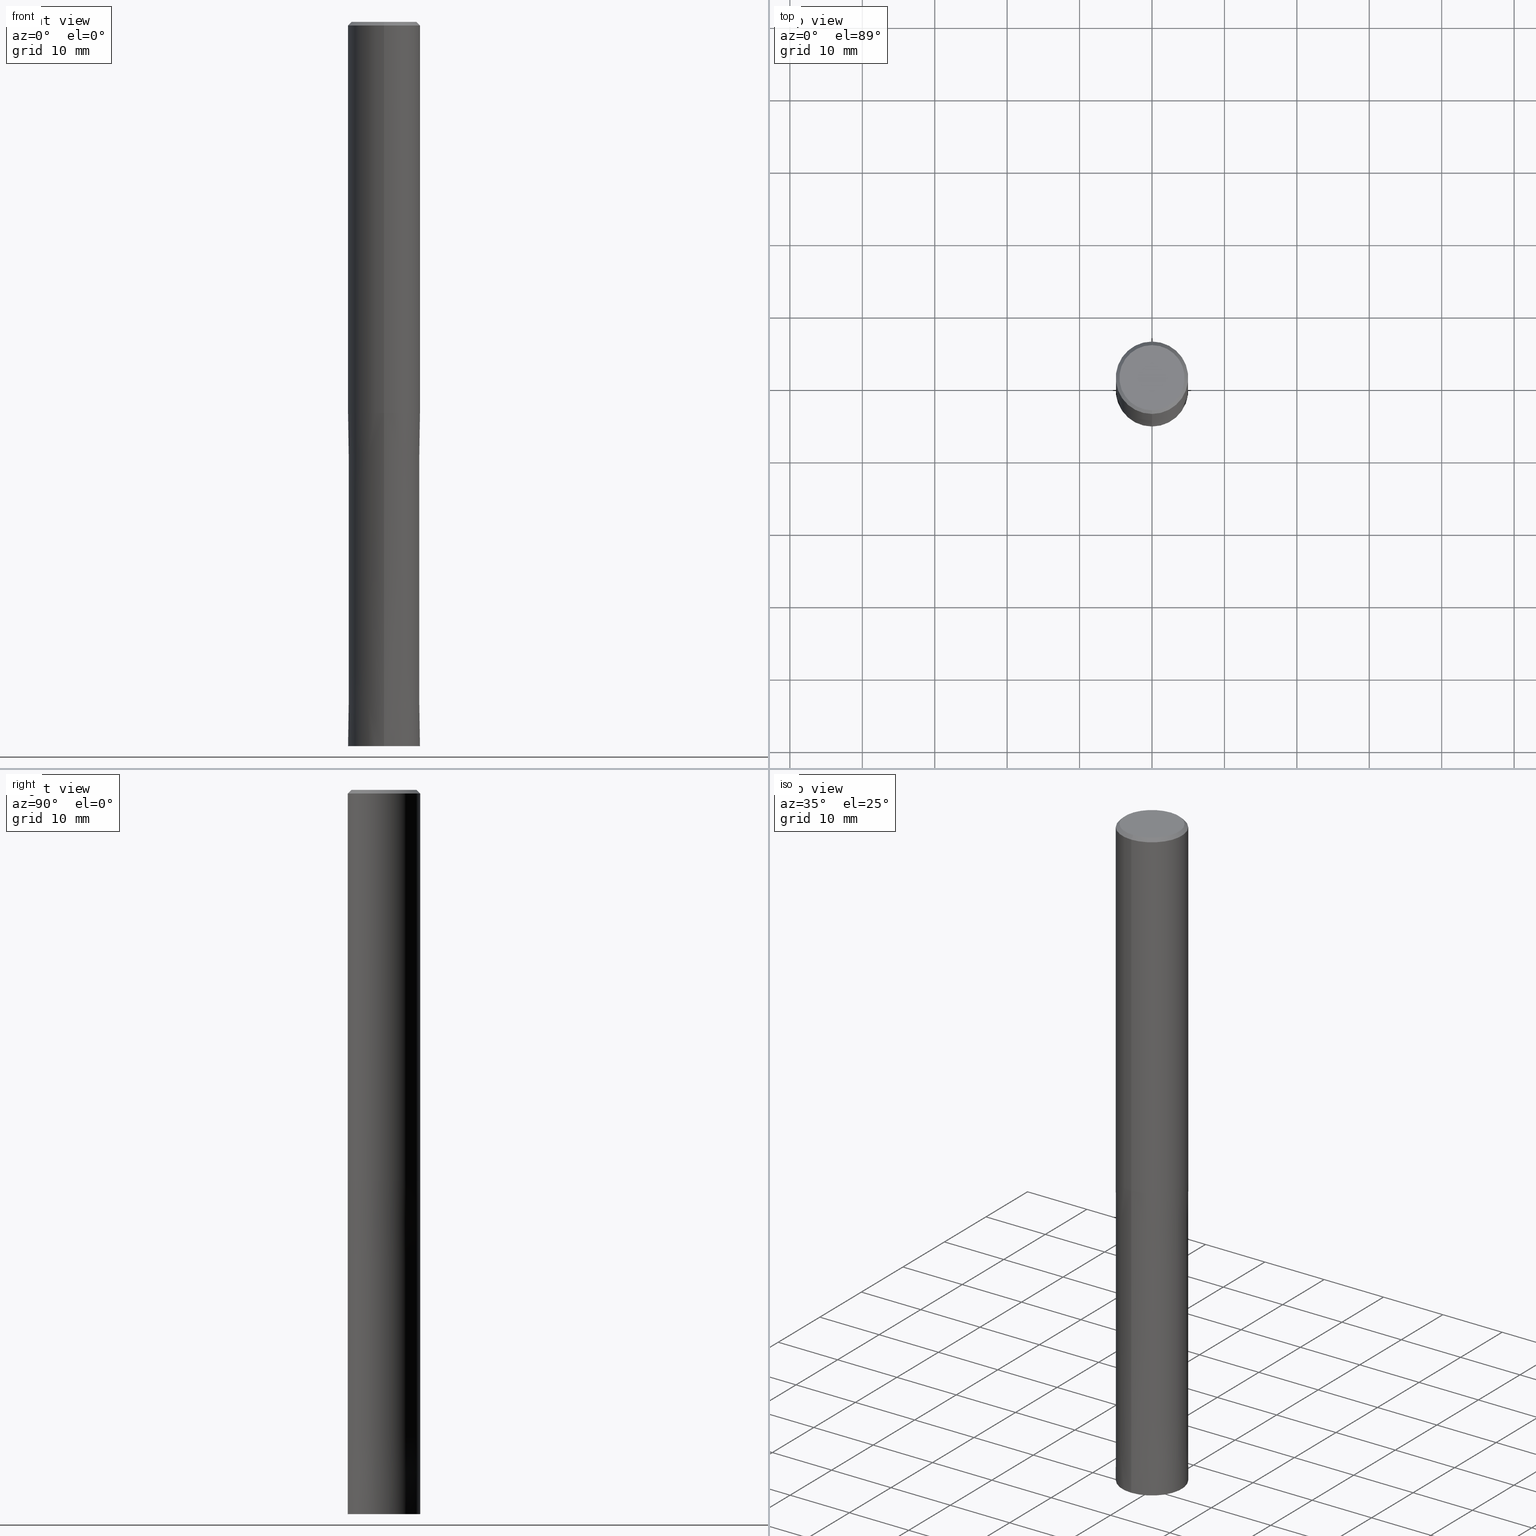
[diagram: canonical four-view strip — front | top / right | iso, engineering-drawing reading convention]
A machine part, canonical four-view strip (front | top / right | iso — engineering-drawing reading convention). The complete STEP part file that produces these views, byte-faithful:
ISO-10303-21;
HEADER;
FILE_DESCRIPTION(('no description'),'unknown implementation level');
FILE_NAME('HMS6100-4600-Huellk.stp','  ',('CIMSOURCE GmbH'),('CADClick - KiM GmbH - www.kimweb.de'),'unknown preprocess','ACIS','unknown authorization');
FILE_SCHEMA(('automotive_design'));
ENDSEC;
DATA;
#1=MECHANICAL_DESIGN_GEOMETRIC_PRESENTATION_REPRESENTATION(' ',(#14,#15,#16,#17,#18,#19,#20,#21,#22,#23,#24,#25,#26,#27,#28,#29,#30,#31,#32,#33,#34,#35,#36,#37,#38,#39,#40,#41,#42,#43,#44,#45,#46,#47,#48,#49,#50,#51,#52,#53,#54,#55,#56,#57,#58,#59,#60,#61,#62,#63,#64,#65,#66,#67,#68,#69,#70,#71,#72,#73,#74,#75,#76),#10);
#2=PRODUCT_DEFINITION_CONTEXT('',#77,'design');
#3=APPLICATION_PROTOCOL_DEFINITION('INTERNATIONAL STANDARD','automotive_design',1994,#77);
#4=PRODUCT_CATEGORY_RELATIONSHIP('NONE','NONE',#78,#79);
#5=SHAPE_DEFINITION_REPRESENTATION(#80,#81);
#6=PRODUCT_DEFINITION_CONTEXT('',#82,'design');
#7=APPLICATION_PROTOCOL_DEFINITION('INTERNATIONAL STANDARD','automotive_design',1994,#82);
#8=PRODUCT_CATEGORY_RELATIONSHIP('NONE','NONE',#83,#84);
#9=SHAPE_DEFINITION_REPRESENTATION(#85,#86);
#10= (GEOMETRIC_REPRESENTATION_CONTEXT(3)GLOBAL_UNCERTAINTY_ASSIGNED_CONTEXT((#89))GLOBAL_UNIT_ASSIGNED_CONTEXT((#91,#92,#93))REPRESENTATION_CONTEXT('NONE','WORKSPACE'));
#14=STYLED_ITEM('',(#95),#96);
#15=STYLED_ITEM('',(#97),#98);
#16=STYLED_ITEM('',(#99),#100);
#17=STYLED_ITEM('',(#101),#102);
#18=STYLED_ITEM('',(#103),#104);
#19=STYLED_ITEM('',(#105),#106);
#20=STYLED_ITEM('',(#107),#108);
#21=STYLED_ITEM('',(#109),#110);
#22=STYLED_ITEM('',(#111),#112);
#23=STYLED_ITEM('',(#113),#114);
#24=STYLED_ITEM('',(#115),#116);
#25=STYLED_ITEM('',(#117),#118);
#26=STYLED_ITEM('',(#119),#120);
#27=STYLED_ITEM('',(#121),#122);
#28=STYLED_ITEM('',(#123),#124);
#29=STYLED_ITEM('',(#125),#126);
#30=STYLED_ITEM('',(#127),#128);
#31=STYLED_ITEM('',(#129),#130);
#32=STYLED_ITEM('',(#131),#132);
#33=STYLED_ITEM('',(#133),#134);
#34=STYLED_ITEM('',(#135),#136);
#35=STYLED_ITEM('',(#137),#138);
#36=STYLED_ITEM('',(#139),#140);
#37=STYLED_ITEM('',(#141),#142);
#38=STYLED_ITEM('',(#143),#144);
#39=STYLED_ITEM('',(#145),#146);
#40=STYLED_ITEM('',(#147),#148);
#41=STYLED_ITEM('',(#149),#150);
#42=STYLED_ITEM('',(#151),#152);
#43=STYLED_ITEM('',(#153),#154);
#44=STYLED_ITEM('',(#155),#156);
#45=STYLED_ITEM('',(#157),#158);
#46=STYLED_ITEM('',(#159),#160);
#47=STYLED_ITEM('',(#161),#162);
#48=STYLED_ITEM('',(#163),#164);
#49=STYLED_ITEM('',(#165),#166);
#50=STYLED_ITEM('',(#167),#168);
#51=STYLED_ITEM('',(#169),#170);
#52=STYLED_ITEM('',(#171),#172);
#53=STYLED_ITEM('',(#173),#174);
#54=STYLED_ITEM('',(#175),#176);
#55=STYLED_ITEM('',(#177),#178);
#56=STYLED_ITEM('',(#179),#180);
#57=STYLED_ITEM('',(#181),#182);
#58=STYLED_ITEM('',(#183),#184);
#59=STYLED_ITEM('',(#185),#186);
#60=STYLED_ITEM('',(#187),#188);
#61=STYLED_ITEM('',(#189),#190);
#62=STYLED_ITEM('',(#191),#192);
#63=STYLED_ITEM('',(#193),#194);
#64=STYLED_ITEM('',(#195),#196);
#65=STYLED_ITEM('',(#197),#198);
#66=STYLED_ITEM('',(#199),#200);
#67=STYLED_ITEM('',(#201),#202);
#68=STYLED_ITEM('',(#203),#204);
#69=STYLED_ITEM('',(#205),#206);
#70=STYLED_ITEM('',(#207),#208);
#71=STYLED_ITEM('',(#209),#210);
#72=STYLED_ITEM('',(#211),#212);
#73=STYLED_ITEM('',(#213),#214);
#74=STYLED_ITEM('',(#215),#216);
#75=STYLED_ITEM('',(#217),#218);
#76=STYLED_ITEM('',(#219),#220);
#77=APPLICATION_CONTEXT(' ');
#78=PRODUCT_CATEGORY('part','NONE');
#79=PRODUCT_RELATED_PRODUCT_CATEGORY('detail',' ',(#221));
#80=PRODUCT_DEFINITION_SHAPE('NONE','NONE',#222);
#81=ADVANCED_BREP_SHAPE_REPRESENTATION('1',(#108,#223),#10);
#82=APPLICATION_CONTEXT(' ');
#83=PRODUCT_CATEGORY('part','NONE');
#84=PRODUCT_RELATED_PRODUCT_CATEGORY('detail',' ',(#224));
#85=PRODUCT_DEFINITION_SHAPE('NONE','NONE',#225);
#86=ADVANCED_BREP_SHAPE_REPRESENTATION('2',(#152,#226),#10);
#89=UNCERTAINTY_MEASURE_WITH_UNIT(LENGTH_MEASURE(1.0E-006),#91,'','');
#91= (CONVERSION_BASED_UNIT('MILLIMETRE',#229)LENGTH_UNIT()NAMED_UNIT(#232));
#92= (NAMED_UNIT(#234)PLANE_ANGLE_UNIT()SI_UNIT($,.RADIAN.));
#93= (NAMED_UNIT(#234)SOLID_ANGLE_UNIT()SI_UNIT($,.STERADIAN.));
#95=PRESENTATION_STYLE_ASSIGNMENT((#240));
#96=ADVANCED_FACE('',(#241),#242,.T.);
#97=PRESENTATION_STYLE_ASSIGNMENT((#243));
#98=EDGE_CURVE('',#104,#206,#244,.T.);
#99=PRESENTATION_STYLE_ASSIGNMENT((#245));
#100=ADVANCED_FACE('',(#246),#247,.T.);
#101=PRESENTATION_STYLE_ASSIGNMENT((#248));
#102=EDGE_CURVE('',#158,#194,#249,.T.);
#103=PRESENTATION_STYLE_ASSIGNMENT((#250));
#104=VERTEX_POINT('',#251);
#105=PRESENTATION_STYLE_ASSIGNMENT((#252));
#106=ADVANCED_FACE('',(#253),#254,.T.);
#107=PRESENTATION_STYLE_ASSIGNMENT((#255));
#108=MANIFOLD_SOLID_BREP('1',#256);
#109=PRESENTATION_STYLE_ASSIGNMENT((#257));
#110=VERTEX_POINT('',#258);
#111=PRESENTATION_STYLE_ASSIGNMENT((#259));
#112=EDGE_CURVE('',#188,#110,#260,.T.);
#113=PRESENTATION_STYLE_ASSIGNMENT((#261));
#114=ADVANCED_FACE('',(#262,#263),#264,.T.);
#115=PRESENTATION_STYLE_ASSIGNMENT((#265));
#116=ADVANCED_FACE('',(#266),#267,.T.);
#117=PRESENTATION_STYLE_ASSIGNMENT((#268));
#118=VERTEX_POINT('',#269);
#119=PRESENTATION_STYLE_ASSIGNMENT((#270));
#120=EDGE_CURVE('',#194,#214,#271,.T.);
#121=PRESENTATION_STYLE_ASSIGNMENT((#272));
#122=VERTEX_POINT('',#273);
#123=PRESENTATION_STYLE_ASSIGNMENT((#274));
#124=ADVANCED_FACE('',(#275),#276,.T.);
#125=PRESENTATION_STYLE_ASSIGNMENT((#277));
#126=EDGE_CURVE('',#140,#144,#278,.T.);
#127=PRESENTATION_STYLE_ASSIGNMENT((#279));
#128=EDGE_CURVE('',#156,#188,#280,.T.);
#129=PRESENTATION_STYLE_ASSIGNMENT((#281));
#130=ADVANCED_FACE('',(#282,#283),#284,.T.);
#131=PRESENTATION_STYLE_ASSIGNMENT((#285));
#132=EDGE_CURVE('',#146,#122,#286,.T.);
#133=PRESENTATION_STYLE_ASSIGNMENT((#287));
#134=EDGE_CURVE('',#118,#156,#288,.T.);
#135=PRESENTATION_STYLE_ASSIGNMENT((#289));
#136=VERTEX_POINT('',#290);
#137=PRESENTATION_STYLE_ASSIGNMENT((#291));
#138=EDGE_CURVE('',#104,#148,#292,.T.);
#139=PRESENTATION_STYLE_ASSIGNMENT((#293));
#140=VERTEX_POINT('',#294);
#141=PRESENTATION_STYLE_ASSIGNMENT((#295));
#142=ADVANCED_FACE('',(#296),#297,.T.);
#143=PRESENTATION_STYLE_ASSIGNMENT((#298));
#144=VERTEX_POINT('',#299);
#145=PRESENTATION_STYLE_ASSIGNMENT((#300));
#146=VERTEX_POINT('',#301);
#147=PRESENTATION_STYLE_ASSIGNMENT((#302));
#148=VERTEX_POINT('',#303);
#149=PRESENTATION_STYLE_ASSIGNMENT((#304));
#150=ADVANCED_FACE('',(#305),#306,.T.);
#151=PRESENTATION_STYLE_ASSIGNMENT((#307));
#152=MANIFOLD_SOLID_BREP('2',#308);
#153=PRESENTATION_STYLE_ASSIGNMENT((#309));
#154=EDGE_CURVE('',#144,#180,#310,.T.);
#155=PRESENTATION_STYLE_ASSIGNMENT((#311));
#156=VERTEX_POINT('',#312);
#157=PRESENTATION_STYLE_ASSIGNMENT((#313));
#158=VERTEX_POINT('',#314);
#159=PRESENTATION_STYLE_ASSIGNMENT((#315));
#160=VERTEX_POINT('',#316);
#161=PRESENTATION_STYLE_ASSIGNMENT((#317));
#162=ADVANCED_FACE('',(#318,#319),#320,.T.);
#163=PRESENTATION_STYLE_ASSIGNMENT((#321));
#164=ADVANCED_FACE('',(#322),#323,.F.);
#165=PRESENTATION_STYLE_ASSIGNMENT((#324));
#166=EDGE_CURVE('',#160,#182,#325,.T.);
#167=PRESENTATION_STYLE_ASSIGNMENT((#326));
#168=EDGE_CURVE('',#206,#104,#327,.T.);
#169=PRESENTATION_STYLE_ASSIGNMENT((#328));
#170=ADVANCED_FACE('',(#329),#330,.T.);
#171=PRESENTATION_STYLE_ASSIGNMENT((#331));
#172=EDGE_CURVE('',#122,#146,#332,.T.);
#173=PRESENTATION_STYLE_ASSIGNMENT((#333));
#174=ADVANCED_FACE('',(#334),#335,.T.);
#175=PRESENTATION_STYLE_ASSIGNMENT((#336));
#176=EDGE_CURVE('',#180,#136,#337,.T.);
#177=PRESENTATION_STYLE_ASSIGNMENT((#338));
#178=EDGE_CURVE('',#180,#144,#339,.T.);
#179=PRESENTATION_STYLE_ASSIGNMENT((#340));
#180=VERTEX_POINT('',#341);
#181=PRESENTATION_STYLE_ASSIGNMENT((#342));
#182=VERTEX_POINT('',#343);
#183=PRESENTATION_STYLE_ASSIGNMENT((#344));
#184=EDGE_CURVE('',#148,#214,#345,.T.);
#185=PRESENTATION_STYLE_ASSIGNMENT((#346));
#186=EDGE_CURVE('',#214,#148,#347,.T.);
#187=PRESENTATION_STYLE_ASSIGNMENT((#348));
#188=VERTEX_POINT('',#349);
#189=PRESENTATION_STYLE_ASSIGNMENT((#350));
#190=EDGE_CURVE('',#194,#158,#351,.T.);
#191=PRESENTATION_STYLE_ASSIGNMENT((#352));
#192=EDGE_CURVE('',#140,#136,#353,.T.);
#193=PRESENTATION_STYLE_ASSIGNMENT((#354));
#194=VERTEX_POINT('',#355);
#195=PRESENTATION_STYLE_ASSIGNMENT((#356));
#196=ADVANCED_FACE('',(#357),#358,.F.);
#197=PRESENTATION_STYLE_ASSIGNMENT((#359));
#198=EDGE_CURVE('',#148,#158,#360,.T.);
#199=PRESENTATION_STYLE_ASSIGNMENT((#361));
#200=EDGE_CURVE('',#182,#122,#362,.T.);
#201=PRESENTATION_STYLE_ASSIGNMENT((#363));
#202=EDGE_CURVE('',#156,#118,#364,.T.);
#203=PRESENTATION_STYLE_ASSIGNMENT((#365));
#204=EDGE_CURVE('',#110,#118,#366,.T.);
#205=PRESENTATION_STYLE_ASSIGNMENT((#367));
#206=VERTEX_POINT('',#368);
#207=PRESENTATION_STYLE_ASSIGNMENT((#369));
#208=EDGE_CURVE('',#110,#188,#370,.T.);
#209=PRESENTATION_STYLE_ASSIGNMENT((#371));
#210=ADVANCED_FACE('',(#372),#373,.T.);
#211=PRESENTATION_STYLE_ASSIGNMENT((#374));
#212=EDGE_CURVE('',#214,#206,#375,.T.);
#213=PRESENTATION_STYLE_ASSIGNMENT((#376));
#214=VERTEX_POINT('',#377);
#215=PRESENTATION_STYLE_ASSIGNMENT((#378));
#216=EDGE_CURVE('',#146,#160,#379,.T.);
#217=PRESENTATION_STYLE_ASSIGNMENT((#380));
#218=EDGE_CURVE('',#182,#160,#381,.T.);
#219=PRESENTATION_STYLE_ASSIGNMENT((#382));
#220=EDGE_CURVE('',#136,#140,#383,.T.);
#221=PRODUCT('1','1','PART-1-DESC',(#384));
#222=PRODUCT_DEFINITION('NONE','NONE',#385,#2);
#223=AXIS2_PLACEMENT_3D('',#386,#387,#388);
#224=PRODUCT('2','2','PART-2-DESC',(#389));
#225=PRODUCT_DEFINITION('NONE','NONE',#390,#6);
#226=AXIS2_PLACEMENT_3D('',#391,#392,#393);
#229=LENGTH_MEASURE_WITH_UNIT(LENGTH_MEASURE(1.0),#394);
#232=DIMENSIONAL_EXPONENTS(1.0,0.0,0.0,0.0,0.0,0.0,0.0);
#234=DIMENSIONAL_EXPONENTS(0.0,0.0,0.0,0.0,0.0,0.0,0.0);
#240=SURFACE_STYLE_USAGE(.BOTH.,#395);
#241=FACE_OUTER_BOUND('',#396,.T.);
#242=PLANE('',#397);
#243=CURVE_STYLE('',#398,POSITIVE_LENGTH_MEASURE(1.0E-006),#399);
#244=CIRCLE('',#400,5.0);
#245=SURFACE_STYLE_USAGE(.BOTH.,#401);
#246=FACE_OUTER_BOUND('',#402,.T.);
#247=CYLINDRICAL_SURFACE('',#403,5.0);
#248=CURVE_STYLE('',#404,POSITIVE_LENGTH_MEASURE(1.0E-006),#405);
#249=CIRCLE('',#406,4.5);
#250=POINT_STYLE(' ',#407,POSITIVE_LENGTH_MEASURE(1.0E-006),#408);
#251=CARTESIAN_POINT('',(6.12303176911189E-016,-5.0,-54.0));
#252=SURFACE_STYLE_USAGE(.BOTH.,#409);
#253=FACE_OUTER_BOUND('',#410,.T.);
#254=CONICAL_SURFACE('',#411,4.99995,2.17391304346977E-006);
#255=SURFACE_STYLE_USAGE(.BOTH.,#412);
#256=CLOSED_SHELL('',(#150,#100,#142,#162,#96,#170,#116,#174,#210));
#257=POINT_STYLE(' ',#413,POSITIVE_LENGTH_MEASURE(1.0E-006),#414);
#258=CARTESIAN_POINT('',(2.75536429610035E-016,-2.25,-100.0));
#259=CURVE_STYLE('',#415,POSITIVE_LENGTH_MEASURE(1.0E-006),#416);
#260=CIRCLE('',#417,2.25);
#261=SURFACE_STYLE_USAGE(.BOTH.,#418);
#262=FACE_OUTER_BOUND('',#419,.T.);
#263=FACE_BOUND('',#420,.T.);
#264=PLANE('',#421);
#265=SURFACE_STYLE_USAGE(.BOTH.,#422);
#266=FACE_OUTER_BOUND('',#423,.T.);
#267=CYLINDRICAL_SURFACE('',#424,5.0);
#268=POINT_STYLE(' ',#425,POSITIVE_LENGTH_MEASURE(1.0E-006),#426);
#269=CARTESIAN_POINT('',(2.75536429610035E-016,-2.25,-54.0));
#270=CURVE_STYLE('',#427,POSITIVE_LENGTH_MEASURE(1.0E-006),#428);
#271=LINE('',#429,#430);
#272=POINT_STYLE(' ',#431,POSITIVE_LENGTH_MEASURE(1.0E-006),#432);
#273=CARTESIAN_POINT('',(0.0,2.25,-99.8));
#274=SURFACE_STYLE_USAGE(.BOTH.,#433);
#275=FACE_OUTER_BOUND('',#434,.T.);
#276=CONICAL_SURFACE('',#435,4.99995,2.17391304346977E-006);
#277=CURVE_STYLE('',#436,POSITIVE_LENGTH_MEASURE(1.0E-006),#437);
#278=LINE('',#438,#439);
#279=CURVE_STYLE('',#440,POSITIVE_LENGTH_MEASURE(1.0E-006),#441);
#280=LINE('',#442,#443);
#281=SURFACE_STYLE_USAGE(.BOTH.,#444);
#282=FACE_OUTER_BOUND('',#445,.T.);
#283=FACE_BOUND('',#446,.T.);
#284=PLANE('',#447);
#285=CURVE_STYLE('',#448,POSITIVE_LENGTH_MEASURE(1.0E-006),#449);
#286=CIRCLE('',#450,2.25);
#287=CURVE_STYLE('',#451,POSITIVE_LENGTH_MEASURE(1.0E-006),#452);
#288=CIRCLE('',#453,2.25);
#289=POINT_STYLE(' ',#454,POSITIVE_LENGTH_MEASURE(1.0E-006),#455);
#290=CARTESIAN_POINT('',(0.0,5.0,-100.0));
#291=CURVE_STYLE('',#456,POSITIVE_LENGTH_MEASURE(1.0E-006),#457);
#292=LINE('',#458,#459);
#293=POINT_STYLE(' ',#460,POSITIVE_LENGTH_MEASURE(1.0E-006),#461);
#294=CARTESIAN_POINT('',(6.12303176911189E-016,-5.0,-100.0));
#295=SURFACE_STYLE_USAGE(.BOTH.,#462);
#296=FACE_OUTER_BOUND('',#463,.T.);
#297=CONICAL_SURFACE('',#464,4.75,0.785398163397448);
#298=POINT_STYLE(' ',#465,POSITIVE_LENGTH_MEASURE(1.0E-006),#466);
#299=CARTESIAN_POINT('',(6.12290930847651E-016,-4.9999,-54.0));
#300=POINT_STYLE(' ',#467,POSITIVE_LENGTH_MEASURE(1.0E-006),#468);
#301=CARTESIAN_POINT('',(2.75536429610035E-016,-2.25,-99.8));
#302=POINT_STYLE(' ',#469,POSITIVE_LENGTH_MEASURE(1.0E-006),#470);
#303=CARTESIAN_POINT('',(6.12303176911189E-016,-5.0,-0.5));
#304=SURFACE_STYLE_USAGE(.BOTH.,#471);
#305=FACE_OUTER_BOUND('',#472,.T.);
#306=CYLINDRICAL_SURFACE('',#473,2.25);
#307=SURFACE_STYLE_USAGE(.BOTH.,#474);
#308=CLOSED_SHELL('',(#196,#106,#114,#124,#130,#164));
#309=CURVE_STYLE('',#475,POSITIVE_LENGTH_MEASURE(1.0E-006),#476);
#310=CIRCLE('',#477,4.9999);
#311=POINT_STYLE(' ',#478,POSITIVE_LENGTH_MEASURE(1.0E-006),#479);
#312=CARTESIAN_POINT('',(0.0,2.25,-54.0));
#313=POINT_STYLE(' ',#480,POSITIVE_LENGTH_MEASURE(1.0E-006),#481);
#314=CARTESIAN_POINT('',(5.5107285922007E-016,-4.5,0.0));
#315=POINT_STYLE(' ',#482,POSITIVE_LENGTH_MEASURE(1.0E-006),#483);
#316=CARTESIAN_POINT('',(2.75536429610035E-016,-2.25,-54.0));
#317=SURFACE_STYLE_USAGE(.BOTH.,#484);
#318=FACE_OUTER_BOUND('',#485,.T.);
#319=FACE_BOUND('',#486,.T.);
#320=PLANE('',#487);
#321=SURFACE_STYLE_USAGE(.BOTH.,#488);
#322=FACE_OUTER_BOUND('',#489,.T.);
#323=CYLINDRICAL_SURFACE('',#490,2.25);
#324=CURVE_STYLE('',#491,POSITIVE_LENGTH_MEASURE(1.0E-006),#492);
#325=CIRCLE('',#493,2.25);
#326=CURVE_STYLE('',#494,POSITIVE_LENGTH_MEASURE(1.0E-006),#495);
#327=CIRCLE('',#496,5.0);
#328=SURFACE_STYLE_USAGE(.BOTH.,#497);
#329=FACE_OUTER_BOUND('',#498,.T.);
#330=CONICAL_SURFACE('',#499,4.75,0.785398163397448);
#331=CURVE_STYLE('',#500,POSITIVE_LENGTH_MEASURE(1.0E-006),#501);
#332=CIRCLE('',#502,2.25);
#333=SURFACE_STYLE_USAGE(.BOTH.,#503);
#334=FACE_OUTER_BOUND('',#504,.T.);
#335=CYLINDRICAL_SURFACE('',#505,2.25);
#336=CURVE_STYLE('',#506,POSITIVE_LENGTH_MEASURE(1.0E-006),#507);
#337=LINE('',#508,#509);
#338=CURVE_STYLE('',#510,POSITIVE_LENGTH_MEASURE(1.0E-006),#511);
#339=CIRCLE('',#512,4.9999);
#340=POINT_STYLE(' ',#513,POSITIVE_LENGTH_MEASURE(1.0E-006),#514);
#341=CARTESIAN_POINT('',(0.0,4.9999,-54.0));
#342=POINT_STYLE(' ',#515,POSITIVE_LENGTH_MEASURE(1.0E-006),#516);
#343=CARTESIAN_POINT('',(0.0,2.25,-54.0));
#344=CURVE_STYLE('',#517,POSITIVE_LENGTH_MEASURE(1.0E-006),#518);
#345=CIRCLE('',#519,5.0);
#346=CURVE_STYLE('',#520,POSITIVE_LENGTH_MEASURE(1.0E-006),#521);
#347=CIRCLE('',#522,5.0);
#348=POINT_STYLE(' ',#523,POSITIVE_LENGTH_MEASURE(1.0E-006),#524);
#349=CARTESIAN_POINT('',(0.0,2.25,-100.0));
#350=CURVE_STYLE('',#525,POSITIVE_LENGTH_MEASURE(1.0E-006),#526);
#351=CIRCLE('',#527,4.5);
#352=CURVE_STYLE('',#528,POSITIVE_LENGTH_MEASURE(1.0E-006),#529);
#353=CIRCLE('',#530,5.0);
#354=POINT_STYLE(' ',#531,POSITIVE_LENGTH_MEASURE(1.0E-006),#532);
#355=CARTESIAN_POINT('',(0.0,4.5,0.0));
#356=SURFACE_STYLE_USAGE(.BOTH.,#533);
#357=FACE_OUTER_BOUND('',#534,.T.);
#358=CYLINDRICAL_SURFACE('',#535,2.25);
#359=CURVE_STYLE('',#536,POSITIVE_LENGTH_MEASURE(1.0E-006),#537);
#360=LINE('',#538,#539);
#361=CURVE_STYLE('',#540,POSITIVE_LENGTH_MEASURE(1.0E-006),#541);
#362=LINE('',#542,#543);
#363=CURVE_STYLE('',#544,POSITIVE_LENGTH_MEASURE(1.0E-006),#545);
#364=CIRCLE('',#546,2.25);
#365=CURVE_STYLE('',#547,POSITIVE_LENGTH_MEASURE(1.0E-006),#548);
#366=LINE('',#549,#550);
#367=POINT_STYLE(' ',#551,POSITIVE_LENGTH_MEASURE(1.0E-006),#552);
#368=CARTESIAN_POINT('',(0.0,5.0,-54.0));
#369=CURVE_STYLE('',#553,POSITIVE_LENGTH_MEASURE(1.0E-006),#554);
#370=CIRCLE('',#555,2.25);
#371=SURFACE_STYLE_USAGE(.BOTH.,#556);
#372=FACE_OUTER_BOUND('',#557,.T.);
#373=PLANE('',#558);
#374=CURVE_STYLE('',#559,POSITIVE_LENGTH_MEASURE(1.0E-006),#560);
#375=LINE('',#561,#562);
#376=POINT_STYLE(' ',#563,POSITIVE_LENGTH_MEASURE(1.0E-006),#564);
#377=CARTESIAN_POINT('',(0.0,5.0,-0.5));
#378=CURVE_STYLE('',#565,POSITIVE_LENGTH_MEASURE(1.0E-006),#566);
#379=LINE('',#567,#568);
#380=CURVE_STYLE('',#569,POSITIVE_LENGTH_MEASURE(1.0E-006),#570);
#381=CIRCLE('',#571,2.25);
#382=CURVE_STYLE('',#572,POSITIVE_LENGTH_MEASURE(1.0E-006),#573);
#383=CIRCLE('',#574,5.0);
#384=PRODUCT_CONTEXT('',#77,'mechanical');
#385=PRODUCT_DEFINITION_FORMATION_WITH_SPECIFIED_SOURCE(' ','NONE',#221,.NOT_KNOWN.);
#386=CARTESIAN_POINT('',(0.0,0.0,0.0));
#387=DIRECTION('',(0.0,0.0,1.0));
#388=DIRECTION('',(1.0,0.0,0.0));
#389=PRODUCT_CONTEXT('',#82,'mechanical');
#390=PRODUCT_DEFINITION_FORMATION_WITH_SPECIFIED_SOURCE(' ','NONE',#224,.NOT_KNOWN.);
#391=CARTESIAN_POINT('',(0.0,0.0,0.0));
#392=DIRECTION('',(0.0,0.0,1.0));
#393=DIRECTION('',(1.0,0.0,0.0));
#394= (NAMED_UNIT(#232)LENGTH_UNIT()SI_UNIT(.MILLI.,.METRE.));
#395=SURFACE_SIDE_STYLE('',(#576));
#396=EDGE_LOOP('',(#577,#578));
#397=AXIS2_PLACEMENT_3D('',#579,#580,#581);
#398=DRAUGHTING_PRE_DEFINED_CURVE_FONT('continuous');
#399=COLOUR_RGB('',0.498039215803146,0.498039215803146,0.498039215803146);
#400=AXIS2_PLACEMENT_3D('',#582,#583,#584);
#401=SURFACE_SIDE_STYLE('',(#585));
#402=EDGE_LOOP('',(#586,#587,#588,#589));
#403=AXIS2_PLACEMENT_3D('',#590,#591,#592);
#404=DRAUGHTING_PRE_DEFINED_CURVE_FONT('continuous');
#405=COLOUR_RGB('',0.498039215803146,0.498039215803146,0.498039215803146);
#406=AXIS2_PLACEMENT_3D('',#593,#594,#595);
#407=PRE_DEFINED_MARKER('');
#408=COLOUR_RGB('',0.498039215803146,0.498039215803146,0.498039215803146);
#409=SURFACE_SIDE_STYLE('',(#596));
#410=EDGE_LOOP('',(#597,#598,#599,#600));
#411=AXIS2_PLACEMENT_3D('',#601,#602,#603);
#412=SURFACE_SIDE_STYLE('',(#604));
#413=PRE_DEFINED_MARKER('');
#414=COLOUR_RGB('',0.800000011920929,0.800000011920929,0.800000011920929);
#415=DRAUGHTING_PRE_DEFINED_CURVE_FONT('continuous');
#416=COLOUR_RGB('',0.800000011920929,0.800000011920929,0.800000011920929);
#417=AXIS2_PLACEMENT_3D('',#605,#606,#607);
#418=SURFACE_SIDE_STYLE('',(#608));
#419=EDGE_LOOP('',(#609,#610));
#420=EDGE_LOOP('',(#611,#612));
#421=AXIS2_PLACEMENT_3D('',#613,#614,#615);
#422=SURFACE_SIDE_STYLE('',(#616));
#423=EDGE_LOOP('',(#617,#618,#619,#620));
#424=AXIS2_PLACEMENT_3D('',#621,#622,#623);
#425=PRE_DEFINED_MARKER('');
#426=COLOUR_RGB('',0.800000011920929,0.800000011920929,0.800000011920929);
#427=DRAUGHTING_PRE_DEFINED_CURVE_FONT('continuous');
#428=COLOUR_RGB('',0.498039215803146,0.498039215803146,0.498039215803146);
#429=CARTESIAN_POINT('',(-5.81688018065629E-016,4.75,-0.25));
#430=VECTOR('',#624,1.0);
#431=PRE_DEFINED_MARKER('');
#432=COLOUR_RGB('',0.498039215803146,0.498039215803146,0.498039215803146);
#433=SURFACE_SIDE_STYLE('',(#625));
#434=EDGE_LOOP('',(#626,#627,#628,#629));
#435=AXIS2_PLACEMENT_3D('',#630,#631,#632);
#436=DRAUGHTING_PRE_DEFINED_CURVE_FONT('continuous');
#437=COLOUR_RGB('',0.800000011920929,0.800000011920929,0.800000011920929);
#438=CARTESIAN_POINT('',(6.1229705387942E-016,-4.99995,-77.0));
#439=VECTOR('',#633,1.0);
#440=DRAUGHTING_PRE_DEFINED_CURVE_FONT('continuous');
#441=COLOUR_RGB('',0.800000011920929,0.800000011920929,0.800000011920929);
#442=CARTESIAN_POINT('',(-2.75536429610035E-016,2.25,-77.0));
#443=VECTOR('',#634,1.0);
#444=SURFACE_SIDE_STYLE('',(#635));
#445=EDGE_LOOP('',(#636,#637));
#446=EDGE_LOOP('',(#638,#639));
#447=AXIS2_PLACEMENT_3D('',#640,#641,#642);
#448=DRAUGHTING_PRE_DEFINED_CURVE_FONT('continuous');
#449=COLOUR_RGB('',0.498039215803146,0.498039215803146,0.498039215803146);
#450=AXIS2_PLACEMENT_3D('',#643,#644,#645);
#451=DRAUGHTING_PRE_DEFINED_CURVE_FONT('continuous');
#452=COLOUR_RGB('',0.800000011920929,0.800000011920929,0.800000011920929);
#453=AXIS2_PLACEMENT_3D('',#646,#647,#648);
#454=PRE_DEFINED_MARKER('');
#455=COLOUR_RGB('',0.800000011920929,0.800000011920929,0.800000011920929);
#456=DRAUGHTING_PRE_DEFINED_CURVE_FONT('continuous');
#457=COLOUR_RGB('',0.498039215803146,0.498039215803146,0.498039215803146);
#458=CARTESIAN_POINT('',(6.12303176911189E-016,-5.0,-27.25));
#459=VECTOR('',#649,1.0);
#460=PRE_DEFINED_MARKER('');
#461=COLOUR_RGB('',0.800000011920929,0.800000011920929,0.800000011920929);
#462=SURFACE_SIDE_STYLE('',(#650));
#463=EDGE_LOOP('',(#651,#652,#653,#654));
#464=AXIS2_PLACEMENT_3D('',#655,#656,#657);
#465=PRE_DEFINED_MARKER('');
#466=COLOUR_RGB('',0.800000011920929,0.800000011920929,0.800000011920929);
#467=PRE_DEFINED_MARKER('');
#468=COLOUR_RGB('',0.498039215803146,0.498039215803146,0.498039215803146);
#469=PRE_DEFINED_MARKER('');
#470=COLOUR_RGB('',0.498039215803146,0.498039215803146,0.498039215803146);
#471=SURFACE_SIDE_STYLE('',(#658));
#472=EDGE_LOOP('',(#659,#660,#661,#662));
#473=AXIS2_PLACEMENT_3D('',#663,#664,#665);
#474=SURFACE_SIDE_STYLE('',(#666));
#475=DRAUGHTING_PRE_DEFINED_CURVE_FONT('continuous');
#476=COLOUR_RGB('',0.800000011920929,0.800000011920929,0.800000011920929);
#477=AXIS2_PLACEMENT_3D('',#667,#668,#669);
#478=PRE_DEFINED_MARKER('');
#479=COLOUR_RGB('',0.800000011920929,0.800000011920929,0.800000011920929);
#480=PRE_DEFINED_MARKER('');
#481=COLOUR_RGB('',0.498039215803146,0.498039215803146,0.498039215803146);
#482=PRE_DEFINED_MARKER('');
#483=COLOUR_RGB('',0.498039215803146,0.498039215803146,0.498039215803146);
#484=SURFACE_SIDE_STYLE('',(#670));
#485=EDGE_LOOP('',(#671,#672));
#486=EDGE_LOOP('',(#673,#674));
#487=AXIS2_PLACEMENT_3D('',#675,#676,#677);
#488=SURFACE_SIDE_STYLE('',(#678));
#489=EDGE_LOOP('',(#679,#680,#681,#682));
#490=AXIS2_PLACEMENT_3D('',#683,#684,#685);
#491=DRAUGHTING_PRE_DEFINED_CURVE_FONT('continuous');
#492=COLOUR_RGB('',0.498039215803146,0.498039215803146,0.498039215803146);
#493=AXIS2_PLACEMENT_3D('',#686,#687,#688);
#494=DRAUGHTING_PRE_DEFINED_CURVE_FONT('continuous');
#495=COLOUR_RGB('',0.498039215803146,0.498039215803146,0.498039215803146);
#496=AXIS2_PLACEMENT_3D('',#689,#690,#691);
#497=SURFACE_SIDE_STYLE('',(#692));
#498=EDGE_LOOP('',(#693,#694,#695,#696));
#499=AXIS2_PLACEMENT_3D('',#697,#698,#699);
#500=DRAUGHTING_PRE_DEFINED_CURVE_FONT('continuous');
#501=COLOUR_RGB('',0.498039215803146,0.498039215803146,0.498039215803146);
#502=AXIS2_PLACEMENT_3D('',#700,#701,#702);
#503=SURFACE_SIDE_STYLE('',(#703));
#504=EDGE_LOOP('',(#704,#705,#706,#707));
#505=AXIS2_PLACEMENT_3D('',#708,#709,#710);
#506=DRAUGHTING_PRE_DEFINED_CURVE_FONT('continuous');
#507=COLOUR_RGB('',0.800000011920929,0.800000011920929,0.800000011920929);
#508=CARTESIAN_POINT('',(-6.12297053879419E-016,4.99995,-77.0));
#509=VECTOR('',#711,1.0);
#510=DRAUGHTING_PRE_DEFINED_CURVE_FONT('continuous');
#511=COLOUR_RGB('',0.800000011920929,0.800000011920929,0.800000011920929);
#512=AXIS2_PLACEMENT_3D('',#712,#713,#714);
#513=PRE_DEFINED_MARKER('');
#514=COLOUR_RGB('',0.800000011920929,0.800000011920929,0.800000011920929);
#515=PRE_DEFINED_MARKER('');
#516=COLOUR_RGB('',0.498039215803146,0.498039215803146,0.498039215803146);
#517=DRAUGHTING_PRE_DEFINED_CURVE_FONT('continuous');
#518=COLOUR_RGB('',0.498039215803146,0.498039215803146,0.498039215803146);
#519=AXIS2_PLACEMENT_3D('',#715,#716,#717);
#520=DRAUGHTING_PRE_DEFINED_CURVE_FONT('continuous');
#521=COLOUR_RGB('',0.498039215803146,0.498039215803146,0.498039215803146);
#522=AXIS2_PLACEMENT_3D('',#718,#719,#720);
#523=PRE_DEFINED_MARKER('');
#524=COLOUR_RGB('',0.800000011920929,0.800000011920929,0.800000011920929);
#525=DRAUGHTING_PRE_DEFINED_CURVE_FONT('continuous');
#526=COLOUR_RGB('',0.498039215803146,0.498039215803146,0.498039215803146);
#527=AXIS2_PLACEMENT_3D('',#721,#722,#723);
#528=DRAUGHTING_PRE_DEFINED_CURVE_FONT('continuous');
#529=COLOUR_RGB('',0.800000011920929,0.800000011920929,0.800000011920929);
#530=AXIS2_PLACEMENT_3D('',#724,#725,#726);
#531=PRE_DEFINED_MARKER('');
#532=COLOUR_RGB('',0.498039215803146,0.498039215803146,0.498039215803146);
#533=SURFACE_SIDE_STYLE('',(#727));
#534=EDGE_LOOP('',(#728,#729,#730,#731));
#535=AXIS2_PLACEMENT_3D('',#732,#733,#734);
#536=DRAUGHTING_PRE_DEFINED_CURVE_FONT('continuous');
#537=COLOUR_RGB('',0.498039215803146,0.498039215803146,0.498039215803146);
#538=CARTESIAN_POINT('',(5.81688018065629E-016,-4.75,-0.25));
#539=VECTOR('',#735,1.0);
#540=DRAUGHTING_PRE_DEFINED_CURVE_FONT('continuous');
#541=COLOUR_RGB('',0.498039215803146,0.498039215803146,0.498039215803146);
#542=CARTESIAN_POINT('',(-2.75536429610035E-016,2.25,-76.9));
#543=VECTOR('',#736,1.0);
#544=DRAUGHTING_PRE_DEFINED_CURVE_FONT('continuous');
#545=COLOUR_RGB('',0.800000011920929,0.800000011920929,0.800000011920929);
#546=AXIS2_PLACEMENT_3D('',#737,#738,#739);
#547=DRAUGHTING_PRE_DEFINED_CURVE_FONT('continuous');
#548=COLOUR_RGB('',0.800000011920929,0.800000011920929,0.800000011920929);
#549=CARTESIAN_POINT('',(2.75536429610035E-016,-2.25,-77.0));
#550=VECTOR('',#740,1.0);
#551=PRE_DEFINED_MARKER('');
#552=COLOUR_RGB('',0.498039215803146,0.498039215803146,0.498039215803146);
#553=DRAUGHTING_PRE_DEFINED_CURVE_FONT('continuous');
#554=COLOUR_RGB('',0.800000011920929,0.800000011920929,0.800000011920929);
#555=AXIS2_PLACEMENT_3D('',#741,#742,#743);
#556=SURFACE_SIDE_STYLE('',(#744));
#557=EDGE_LOOP('',(#745,#746));
#558=AXIS2_PLACEMENT_3D('',#747,#748,#749);
#559=DRAUGHTING_PRE_DEFINED_CURVE_FONT('continuous');
#560=COLOUR_RGB('',0.498039215803146,0.498039215803146,0.498039215803146);
#561=CARTESIAN_POINT('',(-6.12303176911189E-016,5.0,-27.25));
#562=VECTOR('',#750,1.0);
#563=PRE_DEFINED_MARKER('');
#564=COLOUR_RGB('',0.498039215803146,0.498039215803146,0.498039215803146);
#565=DRAUGHTING_PRE_DEFINED_CURVE_FONT('continuous');
#566=COLOUR_RGB('',0.498039215803146,0.498039215803146,0.498039215803146);
#567=CARTESIAN_POINT('',(2.75536429610035E-016,-2.25,-76.9));
#568=VECTOR('',#751,1.0);
#569=DRAUGHTING_PRE_DEFINED_CURVE_FONT('continuous');
#570=COLOUR_RGB('',0.498039215803146,0.498039215803146,0.498039215803146);
#571=AXIS2_PLACEMENT_3D('',#752,#753,#754);
#572=DRAUGHTING_PRE_DEFINED_CURVE_FONT('continuous');
#573=COLOUR_RGB('',0.800000011920929,0.800000011920929,0.800000011920929);
#574=AXIS2_PLACEMENT_3D('',#755,#756,#757);
#576=SURFACE_STYLE_FILL_AREA(#758);
#577=ORIENTED_EDGE('',*,*,#190,.F.);
#578=ORIENTED_EDGE('',*,*,#102,.F.);
#579=CARTESIAN_POINT('',(0.0,2.25,0.0));
#580=DIRECTION('',(-0.0,0.0,1.0));
#581=DIRECTION('',(0.0,-1.0,0.0));
#582=CARTESIAN_POINT('',(0.0,0.0,-54.0));
#583=DIRECTION('',(0.0,0.0,-1.0));
#584=DIRECTION('',(0.0,1.0,0.0));
#585=SURFACE_STYLE_FILL_AREA(#759);
#586=ORIENTED_EDGE('',*,*,#212,.F.);
#587=ORIENTED_EDGE('',*,*,#186,.T.);
#588=ORIENTED_EDGE('',*,*,#138,.F.);
#589=ORIENTED_EDGE('',*,*,#168,.F.);
#590=CARTESIAN_POINT('',(0.0,0.0,-27.25));
#591=DIRECTION('',(-0.0,-0.0,1.0));
#592=DIRECTION('',(0.0,1.0,0.0));
#593=CARTESIAN_POINT('',(0.0,0.0,0.0));
#594=DIRECTION('',(0.0,0.0,-1.0));
#595=DIRECTION('',(0.0,1.0,0.0));
#596=SURFACE_STYLE_FILL_AREA(#760);
#597=ORIENTED_EDGE('',*,*,#176,.F.);
#598=ORIENTED_EDGE('',*,*,#178,.T.);
#599=ORIENTED_EDGE('',*,*,#126,.F.);
#600=ORIENTED_EDGE('',*,*,#220,.F.);
#601=CARTESIAN_POINT('',(0.0,0.0,-77.0));
#602=DIRECTION('',(0.0,-0.0,-1.0));
#603=DIRECTION('',(0.0,1.0,0.0));
#604=SURFACE_STYLE_FILL_AREA(#761);
#605=CARTESIAN_POINT('',(0.0,0.0,-100.0));
#606=DIRECTION('',(0.0,0.0,-1.0));
#607=DIRECTION('',(0.0,1.0,0.0));
#608=SURFACE_STYLE_FILL_AREA(#762);
#609=ORIENTED_EDGE('',*,*,#178,.F.);
#610=ORIENTED_EDGE('',*,*,#154,.F.);
#611=ORIENTED_EDGE('',*,*,#202,.T.);
#612=ORIENTED_EDGE('',*,*,#134,.T.);
#613=CARTESIAN_POINT('',(0.0,3.62495,-54.0));
#614=DIRECTION('',(-0.0,0.0,1.0));
#615=DIRECTION('',(0.0,-1.0,0.0));
#616=SURFACE_STYLE_FILL_AREA(#763);
#617=ORIENTED_EDGE('',*,*,#212,.T.);
#618=ORIENTED_EDGE('',*,*,#98,.F.);
#619=ORIENTED_EDGE('',*,*,#138,.T.);
#620=ORIENTED_EDGE('',*,*,#184,.T.);
#621=CARTESIAN_POINT('',(0.0,0.0,-27.25));
#622=DIRECTION('',(-0.0,-0.0,1.0));
#623=DIRECTION('',(0.0,1.0,0.0));
#624=DIRECTION('',(-8.65927457071936E-017,0.707106781186548,-0.707106781186548));
#625=SURFACE_STYLE_FILL_AREA(#764);
#626=ORIENTED_EDGE('',*,*,#176,.T.);
#627=ORIENTED_EDGE('',*,*,#192,.F.);
#628=ORIENTED_EDGE('',*,*,#126,.T.);
#629=ORIENTED_EDGE('',*,*,#154,.T.);
#630=CARTESIAN_POINT('',(0.0,0.0,-77.0));
#631=DIRECTION('',(0.0,-0.0,-1.0));
#632=DIRECTION('',(0.0,1.0,0.0));
#633=DIRECTION('',(-2.66218772568833E-022,2.17391304346806E-006,0.999999999997637));
#634=DIRECTION('',(0.0,-0.0,-1.0));
#635=SURFACE_STYLE_FILL_AREA(#765);
#636=ORIENTED_EDGE('',*,*,#220,.T.);
#637=ORIENTED_EDGE('',*,*,#192,.T.);
#638=ORIENTED_EDGE('',*,*,#112,.F.);
#639=ORIENTED_EDGE('',*,*,#208,.F.);
#640=CARTESIAN_POINT('',(0.0,3.6225,-100.0));
#641=DIRECTION('',(0.0,0.0,-1.0));
#642=DIRECTION('',(0.0,1.0,0.0));
#643=CARTESIAN_POINT('',(0.0,0.0,-99.8));
#644=DIRECTION('',(0.0,0.0,-1.0));
#645=DIRECTION('',(0.0,1.0,0.0));
#646=CARTESIAN_POINT('',(0.0,0.0,-54.0));
#647=DIRECTION('',(0.0,0.0,-1.0));
#648=DIRECTION('',(0.0,1.0,0.0));
#649=DIRECTION('',(-0.0,-0.0,1.0));
#650=SURFACE_STYLE_FILL_AREA(#766);
#651=ORIENTED_EDGE('',*,*,#120,.F.);
#652=ORIENTED_EDGE('',*,*,#190,.T.);
#653=ORIENTED_EDGE('',*,*,#198,.F.);
#654=ORIENTED_EDGE('',*,*,#186,.F.);
#655=CARTESIAN_POINT('',(0.0,0.0,-0.25));
#656=DIRECTION('',(0.0,-0.0,-1.0));
#657=DIRECTION('',(0.0,1.0,0.0));
#658=SURFACE_STYLE_FILL_AREA(#767);
#659=ORIENTED_EDGE('',*,*,#200,.F.);
#660=ORIENTED_EDGE('',*,*,#218,.T.);
#661=ORIENTED_EDGE('',*,*,#216,.F.);
#662=ORIENTED_EDGE('',*,*,#172,.F.);
#663=CARTESIAN_POINT('',(0.0,0.0,-76.9));
#664=DIRECTION('',(-0.0,-0.0,1.0));
#665=DIRECTION('',(0.0,1.0,0.0));
#666=SURFACE_STYLE_FILL_AREA(#768);
#667=CARTESIAN_POINT('',(0.0,0.0,-54.0));
#668=DIRECTION('',(0.0,0.0,-1.0));
#669=DIRECTION('',(0.0,1.0,0.0));
#670=SURFACE_STYLE_FILL_AREA(#769);
#671=ORIENTED_EDGE('',*,*,#168,.T.);
#672=ORIENTED_EDGE('',*,*,#98,.T.);
#673=ORIENTED_EDGE('',*,*,#218,.F.);
#674=ORIENTED_EDGE('',*,*,#166,.F.);
#675=CARTESIAN_POINT('',(0.0,2.5,-54.0));
#676=DIRECTION('',(0.0,0.0,-1.0));
#677=DIRECTION('',(0.0,1.0,0.0));
#678=SURFACE_STYLE_FILL_AREA(#770);
#679=ORIENTED_EDGE('',*,*,#128,.T.);
#680=ORIENTED_EDGE('',*,*,#112,.T.);
#681=ORIENTED_EDGE('',*,*,#204,.T.);
#682=ORIENTED_EDGE('',*,*,#202,.F.);
#683=CARTESIAN_POINT('',(0.0,0.0,-77.0));
#684=DIRECTION('',(-0.0,-0.0,1.0));
#685=DIRECTION('',(0.0,1.0,0.0));
#686=CARTESIAN_POINT('',(0.0,0.0,-54.0));
#687=DIRECTION('',(0.0,0.0,-1.0));
#688=DIRECTION('',(0.0,1.0,0.0));
#689=CARTESIAN_POINT('',(0.0,0.0,-54.0));
#690=DIRECTION('',(0.0,0.0,-1.0));
#691=DIRECTION('',(0.0,1.0,0.0));
#692=SURFACE_STYLE_FILL_AREA(#771);
#693=ORIENTED_EDGE('',*,*,#120,.T.);
#694=ORIENTED_EDGE('',*,*,#184,.F.);
#695=ORIENTED_EDGE('',*,*,#198,.T.);
#696=ORIENTED_EDGE('',*,*,#102,.T.);
#697=CARTESIAN_POINT('',(0.0,0.0,-0.25));
#698=DIRECTION('',(0.0,-0.0,-1.0));
#699=DIRECTION('',(0.0,1.0,0.0));
#700=CARTESIAN_POINT('',(0.0,0.0,-99.8));
#701=DIRECTION('',(0.0,0.0,-1.0));
#702=DIRECTION('',(0.0,1.0,0.0));
#703=SURFACE_STYLE_FILL_AREA(#772);
#704=ORIENTED_EDGE('',*,*,#200,.T.);
#705=ORIENTED_EDGE('',*,*,#132,.F.);
#706=ORIENTED_EDGE('',*,*,#216,.T.);
#707=ORIENTED_EDGE('',*,*,#166,.T.);
#708=CARTESIAN_POINT('',(0.0,0.0,-76.9));
#709=DIRECTION('',(-0.0,-0.0,1.0));
#710=DIRECTION('',(0.0,1.0,0.0));
#711=DIRECTION('',(-2.66218772568833E-022,2.17391304346806E-006,-0.999999999997637));
#712=CARTESIAN_POINT('',(0.0,0.0,-54.0));
#713=DIRECTION('',(0.0,0.0,-1.0));
#714=DIRECTION('',(0.0,1.0,0.0));
#715=CARTESIAN_POINT('',(0.0,0.0,-0.5));
#716=DIRECTION('',(0.0,0.0,-1.0));
#717=DIRECTION('',(0.0,1.0,0.0));
#718=CARTESIAN_POINT('',(0.0,0.0,-0.5));
#719=DIRECTION('',(0.0,0.0,-1.0));
#720=DIRECTION('',(0.0,1.0,0.0));
#721=CARTESIAN_POINT('',(0.0,0.0,0.0));
#722=DIRECTION('',(0.0,0.0,-1.0));
#723=DIRECTION('',(0.0,1.0,0.0));
#724=CARTESIAN_POINT('',(0.0,0.0,-100.0));
#725=DIRECTION('',(0.0,0.0,-1.0));
#726=DIRECTION('',(0.0,1.0,0.0));
#727=SURFACE_STYLE_FILL_AREA(#773);
#728=ORIENTED_EDGE('',*,*,#128,.F.);
#729=ORIENTED_EDGE('',*,*,#134,.F.);
#730=ORIENTED_EDGE('',*,*,#204,.F.);
#731=ORIENTED_EDGE('',*,*,#208,.T.);
#732=CARTESIAN_POINT('',(0.0,0.0,-77.0));
#733=DIRECTION('',(-0.0,-0.0,1.0));
#734=DIRECTION('',(0.0,1.0,0.0));
#735=DIRECTION('',(-8.65927457071936E-017,0.707106781186548,0.707106781186548));
#736=DIRECTION('',(0.0,0.0,-1.0));
#737=CARTESIAN_POINT('',(0.0,0.0,-54.0));
#738=DIRECTION('',(0.0,0.0,-1.0));
#739=DIRECTION('',(0.0,1.0,0.0));
#740=DIRECTION('',(0.0,-0.0,1.0));
#741=CARTESIAN_POINT('',(0.0,0.0,-100.0));
#742=DIRECTION('',(0.0,0.0,-1.0));
#743=DIRECTION('',(0.0,1.0,0.0));
#744=SURFACE_STYLE_FILL_AREA(#774);
#745=ORIENTED_EDGE('',*,*,#172,.T.);
#746=ORIENTED_EDGE('',*,*,#132,.T.);
#747=CARTESIAN_POINT('',(0.0,1.125,-99.8));
#748=DIRECTION('',(0.0,0.0,-1.0));
#749=DIRECTION('',(0.0,1.0,0.0));
#750=DIRECTION('',(0.0,0.0,-1.0));
#751=DIRECTION('',(-0.0,-0.0,1.0));
#752=CARTESIAN_POINT('',(0.0,0.0,-54.0));
#753=DIRECTION('',(0.0,0.0,-1.0));
#754=DIRECTION('',(0.0,1.0,0.0));
#755=CARTESIAN_POINT('',(0.0,0.0,-100.0));
#756=DIRECTION('',(0.0,0.0,-1.0));
#757=DIRECTION('',(0.0,1.0,0.0));
#758=FILL_AREA_STYLE('',(#775));
#759=FILL_AREA_STYLE('',(#776));
#760=FILL_AREA_STYLE('',(#777));
#761=FILL_AREA_STYLE('',(#778));
#762=FILL_AREA_STYLE('',(#779));
#763=FILL_AREA_STYLE('',(#780));
#764=FILL_AREA_STYLE('',(#781));
#765=FILL_AREA_STYLE('',(#782));
#766=FILL_AREA_STYLE('',(#783));
#767=FILL_AREA_STYLE('',(#784));
#768=FILL_AREA_STYLE('',(#785));
#769=FILL_AREA_STYLE('',(#786));
#770=FILL_AREA_STYLE('',(#787));
#771=FILL_AREA_STYLE('',(#788));
#772=FILL_AREA_STYLE('',(#789));
#773=FILL_AREA_STYLE('',(#790));
#774=FILL_AREA_STYLE('',(#791));
#775=FILL_AREA_STYLE_COLOUR('',#792);
#776=FILL_AREA_STYLE_COLOUR('',#793);
#777=FILL_AREA_STYLE_COLOUR('',#794);
#778=FILL_AREA_STYLE_COLOUR('',#795);
#779=FILL_AREA_STYLE_COLOUR('',#796);
#780=FILL_AREA_STYLE_COLOUR('',#797);
#781=FILL_AREA_STYLE_COLOUR('',#798);
#782=FILL_AREA_STYLE_COLOUR('',#799);
#783=FILL_AREA_STYLE_COLOUR('',#800);
#784=FILL_AREA_STYLE_COLOUR('',#801);
#785=FILL_AREA_STYLE_COLOUR('',#802);
#786=FILL_AREA_STYLE_COLOUR('',#803);
#787=FILL_AREA_STYLE_COLOUR('',#804);
#788=FILL_AREA_STYLE_COLOUR('',#805);
#789=FILL_AREA_STYLE_COLOUR('',#806);
#790=FILL_AREA_STYLE_COLOUR('',#807);
#791=FILL_AREA_STYLE_COLOUR('',#808);
#792=COLOUR_RGB('',0.498039215803146,0.498039215803146,0.498039215803146);
#793=COLOUR_RGB('',0.498039215803146,0.498039215803146,0.498039215803146);
#794=COLOUR_RGB('',0.800000011920929,0.800000011920929,0.800000011920929);
#795=COLOUR_RGB('',0.498039215803146,0.498039215803146,0.498039215803146);
#796=COLOUR_RGB('',0.800000011920929,0.800000011920929,0.800000011920929);
#797=COLOUR_RGB('',0.498039215803146,0.498039215803146,0.498039215803146);
#798=COLOUR_RGB('',0.800000011920929,0.800000011920929,0.800000011920929);
#799=COLOUR_RGB('',0.800000011920929,0.800000011920929,0.800000011920929);
#800=COLOUR_RGB('',0.498039215803146,0.498039215803146,0.498039215803146);
#801=COLOUR_RGB('',0.498039215803146,0.498039215803146,0.498039215803146);
#802=COLOUR_RGB('',0.800000011920929,0.800000011920929,0.800000011920929);
#803=COLOUR_RGB('',0.498039215803146,0.498039215803146,0.498039215803146);
#804=COLOUR_RGB('',0.800000011920929,0.800000011920929,0.800000011920929);
#805=COLOUR_RGB('',0.498039215803146,0.498039215803146,0.498039215803146);
#806=COLOUR_RGB('',0.498039215803146,0.498039215803146,0.498039215803146);
#807=COLOUR_RGB('',0.800000011920929,0.800000011920929,0.800000011920929);
#808=COLOUR_RGB('',0.498039215803146,0.498039215803146,0.498039215803146);
#809=AXIS2_PLACEMENT_3D('PCS',#810,#811,#812);
#810=CARTESIAN_POINT('',(0.0,0.0,0.0));
#811=DIRECTION('',(0.0,0.0,1.0));
#812=DIRECTION('',(1.0,0.0,0.0));
#813=AXIS2_PLACEMENT_3D('CIP',#814,#815,#816);
#814=CARTESIAN_POINT('',(0.0,0.0,-100.0));
#815=DIRECTION('',(0.0,0.0,1.0));
#816=DIRECTION('',(1.0,0.0,0.0));
#817=AXIS2_PLACEMENT_3D('CRP',#818,#819,#820);
#818=CARTESIAN_POINT('',(-5.0,0.0,-100.0));
#819=DIRECTION('',(0.0,0.0,1.0));
#820=DIRECTION('',(1.0,0.0,0.0));
#821=AXIS2_PLACEMENT_3D('MCS',#822,#823,#824);
#822=CARTESIAN_POINT('',(0.0,0.0,-54.0));
#823=DIRECTION('',(0.0,0.0,1.0));
#824=DIRECTION('',(1.0,0.0,0.0));
#825=CONSTRUCTIVE_GEOMETRY_REPRESENTATION_RELATIONSHIP('coordinate systems',$,#81,#826);
#826=CONSTRUCTIVE_GEOMETRY_REPRESENTATION('coordinate systems',(#809,#813,#817,#821),#10);
ENDSEC;
END-ISO-10303-21;
